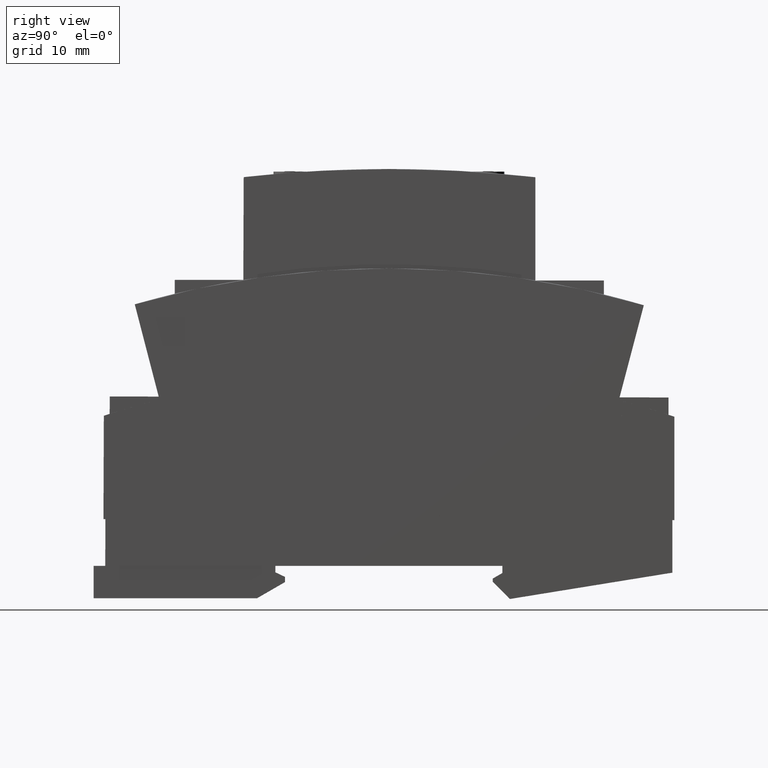
[diagram: clean part render]
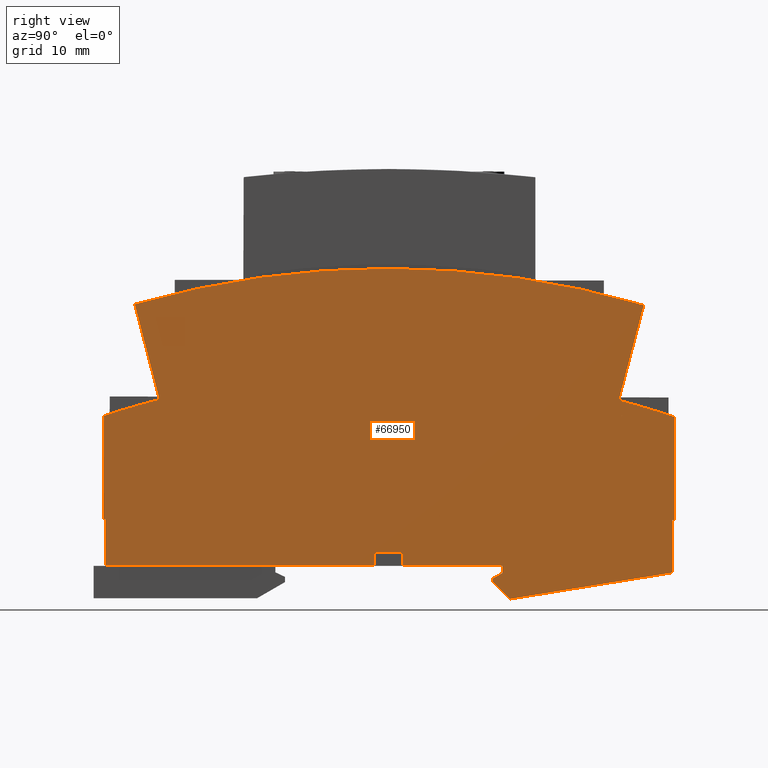
[diagram: same view with one face highlighted and labeled with its STEP entity id]
A machine part, right view. The second image highlights one B-rep face of the part: STEP entity #66950.
In plain terms, the highlighted planar face has unit normal (1, 0, 0).
Its self-contained STEP definition (entity closure, byte-faithful):
#50580=CARTESIAN_POINT('',(-17.6721459234697,-94.1562521937762,17.5));
#50590=DIRECTION('',(-1.35525271563154E-20,-1.81496661283925E-18,1.));
#50600=DIRECTION('',(-0.999998476913288,0.00174532836589861,
-1.03847938020941E-20));
#50610=AXIS2_PLACEMENT_3D('',#50580,#50590,#50600);
#50620=CIRCLE('',#50610,140.);
#50630=CARTESIAN_POINT('',(21.7897716862872,40.1670780901353,17.5));
#50640=VERTEX_POINT('',#50630);
#50650=CARTESIAN_POINT('',(-56.664947194767,40.3040075449925,17.5));
#50660=VERTEX_POINT('',#50650);
#50670=EDGE_CURVE('',#50640,#50660,#50620,.T.);
#65190=CARTESIAN_POINT('',(-17.5000000000001,23.9099318984209,17.5));
#65200=DIRECTION('',(0.,0.,1.));
#65210=DIRECTION('',(1.,0.,0.));
#65220=AXIS2_PLACEMENT_3D('',#65190,#65200,#65210);
#65230=PLANE('',#65220);
#65240=ORIENTED_EDGE('',*,*,#50670,.T.);
#65250=CARTESIAN_POINT('',(13.3228991900158,8.00000000000001,17.5));
#65260=DIRECTION('',(-0.254545369255439,-0.967060833138543,0.));
#65270=VECTOR('',#65260,1.);
#65280=LINE('',#65250,#65270);
#65290=CARTESIAN_POINT('',(17.9367983460244,25.5289818662911,17.5));
#65300=VERTEX_POINT('',#65290);
#65310=EDGE_CURVE('',#50640,#65300,#65280,.T.);
#65320=ORIENTED_EDGE('',*,*,#65310,.F.);
#65330=CARTESIAN_POINT('',(-17.6995533497369,-109.859534773105,17.5));
#65340=DIRECTION('',(-1.35525271563154E-20,-1.81496661283925E-18,1.));
#65350=DIRECTION('',(0.999998476913288,-0.00174532836589864,
1.0384793802094E-20));
#65360=AXIS2_PLACEMENT_3D('',#65330,#65340,#65350);
#65370=CIRCLE('',#65360,140.);
#65380=CARTESIAN_POINT('',(26.4956529806664,22.9816626673469,17.5));
#65390=VERTEX_POINT('',#65380);
#65400=EDGE_CURVE('',#65390,#65300,#65370,.T.);
#65410=ORIENTED_EDGE('',*,*,#65400,.T.);
#65420=CARTESIAN_POINT('',(26.4956529806664,8.00000000000001,17.5));
#65430=DIRECTION('',(4.94981659826532E-15,1.,0.));
#65440=VECTOR('',#65430,1.);
#65450=LINE('',#65420,#65440);
#65460=CARTESIAN_POINT('',(26.4956529806664,7.04749183856525,17.5));
#65470=VERTEX_POINT('',#65460);
#65480=EDGE_CURVE('',#65470,#65390,#65450,.T.);
#65490=ORIENTED_EDGE('',*,*,#65480,.T.);
#65500=CARTESIAN_POINT('',(-68.4771667671577,7.04749183856531,17.5));
#65510=DIRECTION('',(-1.,6.34475111338518E-16,0.));
#65520=VECTOR('',#65510,1.);
#65530=LINE('',#65500,#65520);
#65540=CARTESIAN_POINT('',(26.1956534375924,7.04749183856525,17.5));
#65550=VERTEX_POINT('',#65540);
#65560=EDGE_CURVE('',#65470,#65550,#65530,.T.);
#65570=ORIENTED_EDGE('',*,*,#65560,.F.);
#65580=CARTESIAN_POINT('',(26.1956534375924,8.00000000000001,17.5));
#65590=DIRECTION('',(-2.80808362673746E-16,1.,0.));
#65600=VECTOR('',#65590,1.);
#65610=LINE('',#65580,#65600);
#65620=CARTESIAN_POINT('',(26.1956534375924,-1.05169138413856,17.5));
#65630=VERTEX_POINT('',#65620);
#65640=EDGE_CURVE('',#65630,#65550,#65610,.T.);
#65650=ORIENTED_EDGE('',*,*,#65640,.T.);
#65660=CARTESIAN_POINT('',(-68.4771667671577,-16.3840906403943,17.5));
#65670=DIRECTION('',(0.98713832480494,0.159868470003616,0.));
#65680=VECTOR('',#65670,1.);
#65690=LINE('',#65660,#65680);
#65700=CARTESIAN_POINT('',(1.14413399908865,-5.10882095074802,17.5));
#65710=VERTEX_POINT('',#65700);
#65720=EDGE_CURVE('',#65710,#65630,#65690,.T.);
#65730=ORIENTED_EDGE('',*,*,#65720,.T.);
#65740=CARTESIAN_POINT('',(-11.9190082123887,8.00000000000001,17.5));
#65750=DIRECTION('',(0.705871570678684,-0.708339837724526,0.));
#65760=VECTOR('',#65750,1.);
#65770=LINE('',#65740,#65760);
#65780=CARTESIAN_POINT('',(-1.49502992345568,-2.46042849200957,17.5));
#65790=VERTEX_POINT('',#65780);
#65800=EDGE_CURVE('',#65790,#65710,#65770,.T.);
#65810=ORIENTED_EDGE('',*,*,#65800,.T.);
#65820=CARTESIAN_POINT('',(-1.47677301308225,8.00000000000001,17.5));
#65830=DIRECTION('',(-0.00174532836589892,-0.999998476913288,0.));
#65840=VECTOR('',#65830,1.);
#65850=LINE('',#65820,#65840);
#65860=CARTESIAN_POINT('',(-1.49415725927268,-1.96042925355284,17.5));
#65870=VERTEX_POINT('',#65860);
#65880=EDGE_CURVE('',#65870,#65790,#65850,.T.);
#65890=ORIENTED_EDGE('',*,*,#65880,.T.);
#65900=CARTESIAN_POINT('',(-17.5000000000001,-11.164197038444,17.5));
#65910=DIRECTION('',(-0.866896748935604,-0.498487739753828,0.));
#65920=VECTOR('',#65910,1.);
#65930=LINE('',#65900,#65920);
#65940=CARTESIAN_POINT('',(0.,-1.10125072286148,17.5));
#65950=VERTEX_POINT('',#65940);
#65960=EDGE_CURVE('',#65950,#65870,#65930,.T.);
#65970=ORIENTED_EDGE('',*,*,#65960,.T.);
#65980=CARTESIAN_POINT('',(-1.06581410364015E-14,23.9099318984209,17.5))
;
#65990=DIRECTION('',(4.41495656790506E-16,-1.,0.));
#66000=VECTOR('',#65990,1.);
#66010=LINE('',#65980,#66000);
#66020=CARTESIAN_POINT('',(0.,0.,17.5));
#66030=VERTEX_POINT('',#66020);
#66040=EDGE_CURVE('',#66030,#65950,#66010,.T.);
#66050=ORIENTED_EDGE('',*,*,#66040,.T.);
#66060=CARTESIAN_POINT('',(-17.5000000000001,-7.105427357601E-15,17.5));
#66070=DIRECTION('',(-1.,-4.41495656790506E-16,0.));
#66080=VECTOR('',#66070,1.);
#66090=LINE('',#66060,#66080);
#66100=CARTESIAN_POINT('',(-15.3078838033614,-7.105427357601E-15,17.5));
#66110=VERTEX_POINT('',#66100);
#66120=EDGE_CURVE('',#66030,#66110,#66090,.T.);
#66130=ORIENTED_EDGE('',*,*,#66120,.F.);
#66140=CARTESIAN_POINT('',(-15.3078838033614,23.9099318984209,17.5));
#66150=DIRECTION('',(0.,1.,0.));
#66160=VECTOR('',#66150,1.);
#66170=LINE('',#66140,#66160);
#66180=CARTESIAN_POINT('',(-15.3078838033614,2.01990408026522,17.5));
#66190=VERTEX_POINT('',#66180);
#66200=EDGE_CURVE('',#66110,#66190,#66170,.T.);
#66210=ORIENTED_EDGE('',*,*,#66200,.F.);
#66220=CARTESIAN_POINT('',(-68.4771667671577,2.11270207935582,17.5));
#66230=DIRECTION('',(0.999998476913288,-0.00174532836589864,0.));
#66240=VECTOR('',#66230,1.);
#66250=LINE('',#66220,#66240);
#66260=CARTESIAN_POINT('',(-19.7043864450481,2.02757743272368,17.5));
#66270=VERTEX_POINT('',#66260);
#66280=EDGE_CURVE('',#66270,#66190,#66250,.T.);
#66290=ORIENTED_EDGE('',*,*,#66280,.T.);
#66300=CARTESIAN_POINT('',(-19.7043864450481,23.9099318984209,17.5));
#66310=DIRECTION('',(0.,-1.,0.));
#66320=VECTOR('',#66310,1.);
#66330=LINE('',#66300,#66320);
#66340=CARTESIAN_POINT('',(-19.7043864450481,-7.105427357601E-15,17.5));
#66350=VERTEX_POINT('',#66340);
#66360=EDGE_CURVE('',#66270,#66350,#66330,.T.);
#66370=ORIENTED_EDGE('',*,*,#66360,.F.);
#66380=CARTESIAN_POINT('',(-68.4771667671577,-2.1316282072803E-14,17.5))
;
#66390=DIRECTION('',(-1.,1.20370621524202E-35,0.));
#66400=VECTOR('',#66390,1.);
#66410=LINE('',#66380,#66400);
#66420=CARTESIAN_POINT('',(-61.2012513718032,-2.48689957516035E-14,17.5)
);
#66430=VERTEX_POINT('',#66420);
#66440=EDGE_CURVE('',#66350,#66430,#66410,.T.);
#66450=ORIENTED_EDGE('',*,*,#66440,.F.);
#66460=CARTESIAN_POINT('',(-68.4771667671577,0.0126988808688679,17.5));
#66470=DIRECTION('',(0.999998476913288,-0.00174532836589892,0.));
#66480=VECTOR('',#66470,1.);
#66490=LINE('',#66460,#66480);
#66500=CARTESIAN_POINT('',(-61.2115438237658,1.7963735704285E-5,17.5));
#66510=VERTEX_POINT('',#66500);
#66520=EDGE_CURVE('',#66510,#66430,#66490,.T.);
#66530=ORIENTED_EDGE('',*,*,#66520,.T.);
#66540=CARTESIAN_POINT('',(-61.1836185050186,8.00000000000001,17.5));
#66550=DIRECTION('',(0.00349065141522468,0.999993907657791,0.));
#66560=VECTOR('',#66550,1.);
#66570=LINE('',#66540,#66560);
#66580=CARTESIAN_POINT('',(-61.1864110952969,7.19998506504601,17.5));
#66590=VERTEX_POINT('',#66580);
#66600=EDGE_CURVE('',#66510,#66590,#66570,.T.);
#66610=ORIENTED_EDGE('',*,*,#66600,.F.);
#66620=CARTESIAN_POINT('',(-68.4771667671577,7.21270984710988,17.5));
#66630=DIRECTION('',(-0.999998476913288,0.00174532836589864,0.));
#66640=VECTOR('',#66630,1.);
#66650=LINE('',#66620,#66640);
#66660=CARTESIAN_POINT('',(-61.4864106383708,7.20050866355578,17.5));
#66670=VERTEX_POINT('',#66660);
#66680=EDGE_CURVE('',#66590,#66670,#66650,.T.);
#66690=ORIENTED_EDGE('',*,*,#66680,.F.);
#66700=CARTESIAN_POINT('',(-61.4836198758036,8.00000000000001,17.5));
#66710=DIRECTION('',(0.00349065141521945,0.999993907657791,0.));
#66720=VECTOR('',#66710,1.);
#66730=LINE('',#66700,#66720);
#66740=CARTESIAN_POINT('',(-61.4307881139738,23.1351234128359,17.5));
#66750=VERTEX_POINT('',#66740);
#66760=EDGE_CURVE('',#66670,#66750,#66730,.T.);
#66770=ORIENTED_EDGE('',*,*,#66760,.F.);
#66780=CARTESIAN_POINT('',(-17.6995533497371,-109.859534773105,17.5));
#66790=DIRECTION('',(1.35525271563154E-20,1.81496661283925E-18,-1.));
#66800=DIRECTION('',(-0.999998476913288,0.00174532836589864,
-1.0384793802094E-20));
#66810=AXIS2_PLACEMENT_3D('',#66780,#66790,#66800);
#66820=CIRCLE('',#66810,140.);
#66830=CARTESIAN_POINT('',(-52.8630938194363,25.6525511145968,17.5));
#66840=VERTEX_POINT('',#66830);
#66850=EDGE_CURVE('',#66750,#66840,#66820,.T.);
#66860=ORIENTED_EDGE('',*,*,#66850,.F.);
#66870=CARTESIAN_POINT('',(-48.2824972516442,8.00000000000001,17.5));
#66880=DIRECTION('',(0.25116814621214,-0.96794347062644,0.));
#66890=VECTOR('',#66880,1.);
#66900=LINE('',#66870,#66890);
#66910=EDGE_CURVE('',#50660,#66840,#66900,.T.);
#66920=ORIENTED_EDGE('',*,*,#66910,.T.);
#66930=EDGE_LOOP('',(#66920,#66860,#66770,#66690,#66610,#66530,#66450,
#66370,#66290,#66210,#66130,#66050,#65970,#65890,#65810,#65730,#65650,
#65570,#65490,#65410,#65320,#65240));
#66940=FACE_OUTER_BOUND('',#66930,.T.);
#66950=ADVANCED_FACE('',(#66940),#65230,.T.);